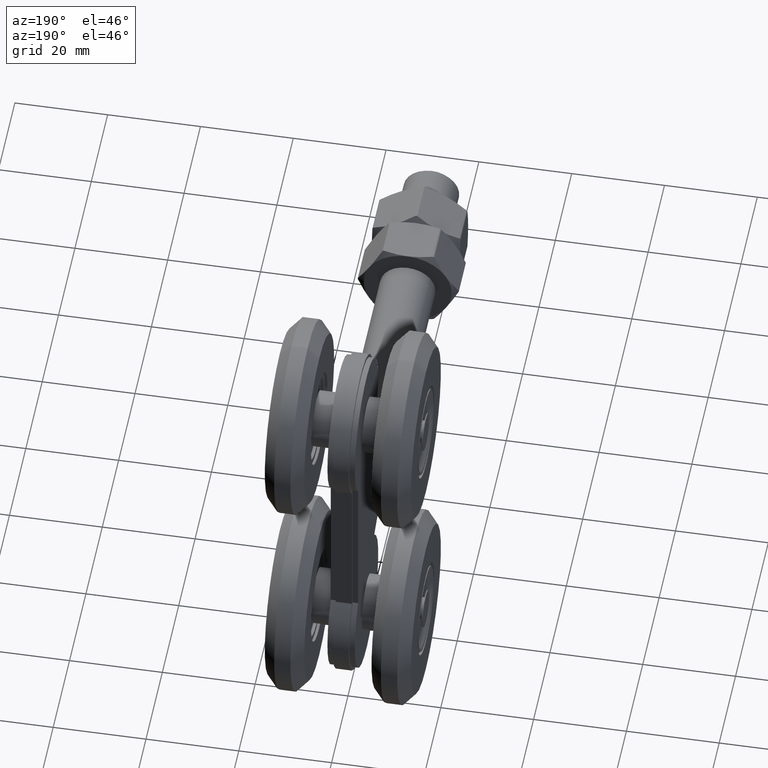
[diagram: clean part render]
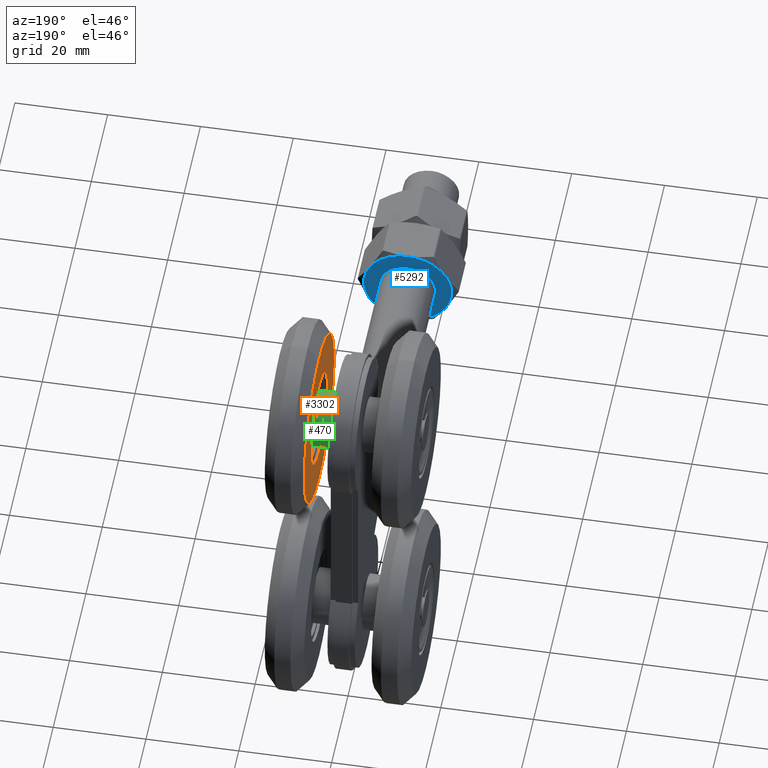
[diagram: same view with three faces highlighted in distinct colors, each labeled with its STEP entity id]
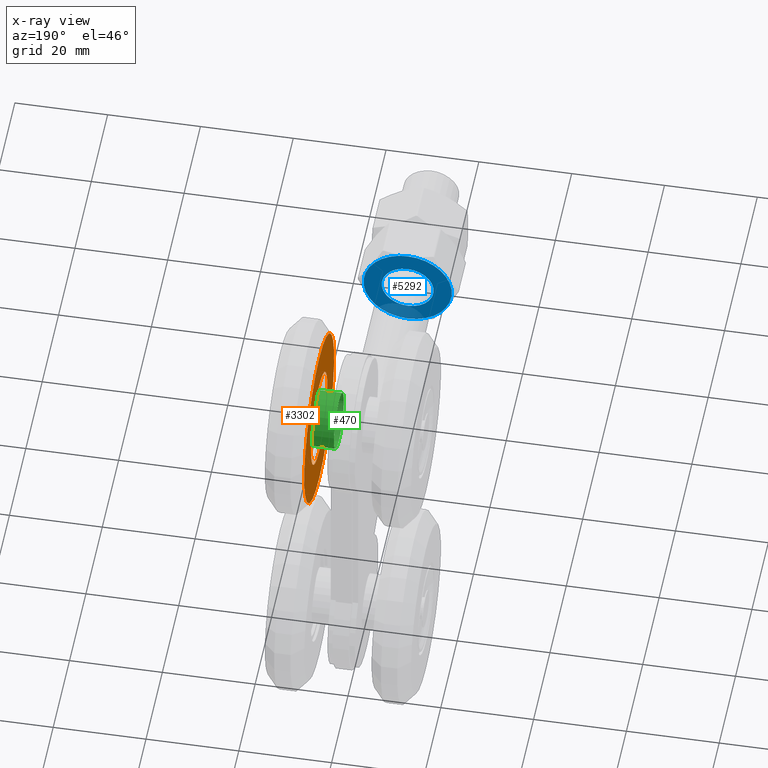
[diagram: x-ray of the same camera — body ghosted, the three highlighted faces saturated]
A machine part, auxiliary view with three faces highlighted in distinct colors.
The next image is the same camera in x-ray (body ghosted, the three faces saturated) — at least one of them is partly hidden behind the body in this view.
Their STEP definitions:

[orange] entity #3302 — the highlighted planar face has unit normal (1, 0, 0).
#1534 = CARTESIAN_POINT ( 'NONE',  ( 7.249999999999993783, 44.00000000000001421, 27.00000000000000000 ) ) ;
#2581 = DIRECTION ( 'NONE',  ( 0.000000000000000000, 0.000000000000000000, 1.000000000000000000 ) ) ;
#2918 = VERTEX_POINT ( 'NONE', #18616 ) ;
#2975 = EDGE_CURVE ( 'NONE', #5075, #5075, #5900, .T. ) ;
#3302 = ADVANCED_FACE ( 'NONE', ( #5883, #4249 ), #4473, .F. ) ;
#4249 = FACE_OUTER_BOUND ( 'NONE', #18711, .T. ) ;
#4257 = ORIENTED_EDGE ( 'NONE', *, *, #2975, .F. ) ;
#4473 = PLANE ( 'NONE',  #8888 ) ;
#5075 = VERTEX_POINT ( 'NONE', #9156 ) ;
#5883 = FACE_BOUND ( 'NONE', #8075, .T. ) ;
#5900 = CIRCLE ( 'NONE', #14739, 10.00000000000000533 ) ;
#7021 = DIRECTION ( 'NONE',  ( -1.000000000000000000, -0.000000000000000000, -0.000000000000000000 ) ) ;
#8075 = EDGE_LOOP ( 'NONE', ( #4257 ) ) ;
#8432 = CARTESIAN_POINT ( 'NONE',  ( 7.249999999999994671, 34.00000000000000000, 27.00000000000000000 ) ) ;
#8763 = DIRECTION ( 'NONE',  ( -1.000000000000000000, -0.000000000000000000, -0.000000000000000000 ) ) ;
#8888 = AXIS2_PLACEMENT_3D ( 'NONE', #1534, #16822, #13844 ) ;
#9156 = CARTESIAN_POINT ( 'NONE',  ( 7.249999999999994671, 34.00000000000000000, 37.00000000000000711 ) ) ;
#10312 = DIRECTION ( 'NONE',  ( 0.000000000000000000, 0.000000000000000000, 1.000000000000000000 ) ) ;
#10632 = CIRCLE ( 'NONE', #12988, 18.25000000000001421 ) ;
#12988 = AXIS2_PLACEMENT_3D ( 'NONE', #14860, #8763, #10312 ) ;
#13844 = DIRECTION ( 'NONE',  ( 0.000000000000000000, 0.000000000000000000, -1.000000000000000000 ) ) ;
#14545 = ORIENTED_EDGE ( 'NONE', *, *, #15165, .T. ) ;
#14739 = AXIS2_PLACEMENT_3D ( 'NONE', #8432, #7021, #2581 ) ;
#14860 = CARTESIAN_POINT ( 'NONE',  ( 7.249999999999992895, 34.00000000000000000, 27.00000000000000000 ) ) ;
#15165 = EDGE_CURVE ( 'NONE', #2918, #2918, #10632, .T. ) ;
#16822 = DIRECTION ( 'NONE',  ( 1.000000000000000000, 0.000000000000000000, 0.000000000000000000 ) ) ;
#18616 = CARTESIAN_POINT ( 'NONE',  ( 7.249999999999992895, 34.00000000000000000, 45.25000000000001421 ) ) ;
#18711 = EDGE_LOOP ( 'NONE', ( #14545 ) ) ;

[blue] entity #5292 — the highlighted planar face has unit normal (0, 1, 0).
#190 = CIRCLE ( 'NONE', #2412, 5.600000000000000533 ) ;
#1187 = ORIENTED_EDGE ( 'NONE', *, *, #11985, .F. ) ;
#1337 = VERTEX_POINT ( 'NONE', #4373 ) ;
#1446 = CARTESIAN_POINT ( 'NONE',  ( 0.000000000000000000, 5.000000000000000000, 0.000000000000000000 ) ) ;
#1474 = DIRECTION ( 'NONE',  ( -0.000000000000000000, -1.000000000000000000, -0.000000000000000000 ) ) ;
#1568 = DIRECTION ( 'NONE',  ( -0.000000000000000000, -1.000000000000000000, -0.000000000000000000 ) ) ;
#1585 = ORIENTED_EDGE ( 'NONE', *, *, #3416, .T. ) ;
#1709 = DIRECTION ( 'NONE',  ( -0.000000000000000000, -1.000000000000000000, -0.000000000000000000 ) ) ;
#1726 = CIRCLE ( 'NONE', #4759, 9.499999999999998224 ) ;
#1795 = ORIENTED_EDGE ( 'NONE', *, *, #17046, .F. ) ;
#2300 = EDGE_CURVE ( 'NONE', #1337, #2424, #10449, .T. ) ;
#2412 = AXIS2_PLACEMENT_3D ( 'NONE', #12962, #5462, #10170 ) ;
#2424 = VERTEX_POINT ( 'NONE', #13035 ) ;
#2634 = VERTEX_POINT ( 'NONE', #14919 ) ;
#2712 = CARTESIAN_POINT ( 'NONE',  ( 0.000000000000000000, 5.000000000000000000, 0.000000000000000000 ) ) ;
#2881 = AXIS2_PLACEMENT_3D ( 'NONE', #17307, #14125, #12564 ) ;
#3241 = FACE_OUTER_BOUND ( 'NONE', #16947, .T. ) ;
#3416 = EDGE_CURVE ( 'NONE', #4377, #4377, #190, .T. ) ;
#4037 = DIRECTION ( 'NONE',  ( 0.000000000000000000, -0.000000000000000000, 1.000000000000000000 ) ) ;
#4187 = CIRCLE ( 'NONE', #15435, 9.499999999999998224 ) ;
#4303 = DIRECTION ( 'NONE',  ( -0.000000000000000000, -1.000000000000000000, -0.000000000000000000 ) ) ;
#4373 = CARTESIAN_POINT ( 'NONE',  ( 8.227241335952166779, 5.000000000000000000, 4.749999999999996447 ) ) ;
#4377 = VERTEX_POINT ( 'NONE', #7586 ) ;
#4687 = VERTEX_POINT ( 'NONE', #11808 ) ;
#4759 = AXIS2_PLACEMENT_3D ( 'NONE', #19674, #16576, #6135 ) ;
#4796 = ORIENTED_EDGE ( 'NONE', *, *, #12464, .F. ) ;
#4802 = CARTESIAN_POINT ( 'NONE',  ( -1.502314598737158637E-15, 5.000000000000000000, -9.499999999999998224 ) ) ;
#5292 = ADVANCED_FACE ( 'NONE', ( #16544, #3241 ), #17663, .T. ) ;
#5462 = DIRECTION ( 'NONE',  ( -0.000000000000000000, -1.000000000000000000, -0.000000000000000000 ) ) ;
#6135 = DIRECTION ( 'NONE',  ( 0.000000000000000000, 0.000000000000000000, 1.000000000000000000 ) ) ;
#6284 = DIRECTION ( 'NONE',  ( 1.776356839400250465E-15, 0.000000000000000000, 1.000000000000000000 ) ) ;
#6948 = CARTESIAN_POINT ( 'NONE',  ( 0.000000000000000000, 5.000000000000000000, 0.000000000000000000 ) ) ;
#7339 = EDGE_CURVE ( 'NONE', #2634, #11659, #1726, .T. ) ;
#7526 = CARTESIAN_POINT ( 'NONE',  ( -8.227241335952165002, 5.000000000000000000, -4.749999999999999112 ) ) ;
#7586 = CARTESIAN_POINT ( 'NONE',  ( 0.000000000000000000, 5.000000000000000000, 5.600000000000000533 ) ) ;
#8533 = DIRECTION ( 'NONE',  ( 0.000000000000000000, 1.000000000000000000, 0.000000000000000000 ) ) ;
#8961 = DIRECTION ( 'NONE',  ( 8.881784197001252323E-16, 0.000000000000000000, 1.000000000000000000 ) ) ;
#9154 = EDGE_CURVE ( 'NONE', #11659, #10735, #12181, .T. ) ;
#9745 = EDGE_LOOP ( 'NONE', ( #1585 ) ) ;
#10170 = DIRECTION ( 'NONE',  ( 0.000000000000000000, 0.000000000000000000, 1.000000000000000000 ) ) ;
#10343 = DIRECTION ( 'NONE',  ( 0.000000000000000000, 0.000000000000000000, -1.000000000000000000 ) ) ;
#10449 = CIRCLE ( 'NONE', #2881, 9.499999999999998224 ) ;
#10735 = VERTEX_POINT ( 'NONE', #4802 ) ;
#10798 = CIRCLE ( 'NONE', #10899, 9.499999999999998224 ) ;
#10899 = AXIS2_PLACEMENT_3D ( 'NONE', #1446, #1568, #18068 ) ;
#11121 = ORIENTED_EDGE ( 'NONE', *, *, #2300, .F. ) ;
#11659 = VERTEX_POINT ( 'NONE', #7526 ) ;
#11808 = CARTESIAN_POINT ( 'NONE',  ( 8.227241335952165002, 5.000000000000000000, -4.750000000000001776 ) ) ;
#11985 = EDGE_CURVE ( 'NONE', #2424, #2634, #10798, .T. ) ;
#12181 = CIRCLE ( 'NONE', #13191, 9.499999999999998224 ) ;
#12464 = EDGE_CURVE ( 'NONE', #10735, #4687, #16187, .T. ) ;
#12564 = DIRECTION ( 'NONE',  ( -8.881784197001252323E-16, 0.000000000000000000, 1.000000000000000000 ) ) ;
#12650 = ORIENTED_EDGE ( 'NONE', *, *, #9154, .F. ) ;
#12962 = CARTESIAN_POINT ( 'NONE',  ( 0.000000000000000000, 5.000000000000000000, 0.000000000000000000 ) ) ;
#13035 = CARTESIAN_POINT ( 'NONE',  ( 0.000000000000000000, 5.000000000000000000, 9.499999999999998224 ) ) ;
#13191 = AXIS2_PLACEMENT_3D ( 'NONE', #15398, #1709, #6284 ) ;
#14125 = DIRECTION ( 'NONE',  ( -0.000000000000000000, -1.000000000000000000, -0.000000000000000000 ) ) ;
#14295 = ORIENTED_EDGE ( 'NONE', *, *, #7339, .F. ) ;
#14919 = CARTESIAN_POINT ( 'NONE',  ( -8.227241335952165002, 5.000000000000000000, 4.750000000000000000 ) ) ;
#15398 = CARTESIAN_POINT ( 'NONE',  ( 0.000000000000000000, 5.000000000000000000, 0.000000000000000000 ) ) ;
#15435 = AXIS2_PLACEMENT_3D ( 'NONE', #16695, #1474, #8961 ) ;
#16073 = AXIS2_PLACEMENT_3D ( 'NONE', #6948, #8533, #4037 ) ;
#16187 = CIRCLE ( 'NONE', #17556, 9.499999999999998224 ) ;
#16544 = FACE_BOUND ( 'NONE', #9745, .T. ) ;
#16576 = DIRECTION ( 'NONE',  ( -0.000000000000000000, -1.000000000000000000, -0.000000000000000000 ) ) ;
#16695 = CARTESIAN_POINT ( 'NONE',  ( 0.000000000000000000, 5.000000000000000000, 0.000000000000000000 ) ) ;
#16947 = EDGE_LOOP ( 'NONE', ( #1187, #11121, #1795, #4796, #12650, #14295 ) ) ;
#17046 = EDGE_CURVE ( 'NONE', #4687, #1337, #4187, .T. ) ;
#17307 = CARTESIAN_POINT ( 'NONE',  ( 0.000000000000000000, 5.000000000000000000, 0.000000000000000000 ) ) ;
#17556 = AXIS2_PLACEMENT_3D ( 'NONE', #2712, #4303, #10343 ) ;
#17663 = PLANE ( 'NONE',  #16073 ) ;
#18068 = DIRECTION ( 'NONE',  ( 0.000000000000000000, 0.000000000000000000, 1.000000000000000000 ) ) ;
#19674 = CARTESIAN_POINT ( 'NONE',  ( 0.000000000000000000, 5.000000000000000000, 0.000000000000000000 ) ) ;

[green] entity #470 — the highlighted cylindrical surface (bore or boss wall) has radius 6 mm, axis along (-1, -0, -0).
#143 = FACE_OUTER_BOUND ( 'NONE', #19463, .T. ) ;
#470 = ADVANCED_FACE ( 'NONE', ( #143, #6079 ), #10839, .T. ) ;
#691 = AXIS2_PLACEMENT_3D ( 'NONE', #6770, #17417, #728 ) ;
#728 = DIRECTION ( 'NONE',  ( 0.000000000000000000, 0.000000000000000000, -1.000000000000000000 ) ) ;
#834 = EDGE_CURVE ( 'NONE', #7703, #7703, #15463, .T. ) ;
#1332 = EDGE_LOOP ( 'NONE', ( #13115 ) ) ;
#3694 = DIRECTION ( 'NONE',  ( 0.000000000000000000, 0.000000000000000000, 1.000000000000000000 ) ) ;
#3738 = CARTESIAN_POINT ( 'NONE',  ( 3.000000000000000000, 34.00000000000000000, 27.00000000000000711 ) ) ;
#3772 = AXIS2_PLACEMENT_3D ( 'NONE', #5127, #15833, #3694 ) ;
#4768 = ORIENTED_EDGE ( 'NONE', *, *, #18889, .F. ) ;
#5127 = CARTESIAN_POINT ( 'NONE',  ( 7.799999999999999822, 34.00000000000000000, 27.00000000000000711 ) ) ;
#6079 = FACE_OUTER_BOUND ( 'NONE', #1332, .T. ) ;
#6770 = CARTESIAN_POINT ( 'NONE',  ( 7.799999999999999822, 34.00000000000000000, 27.00000000000000711 ) ) ;
#6778 = DIRECTION ( 'NONE',  ( 1.000000000000000000, 0.000000000000000000, 0.000000000000000000 ) ) ;
#7048 = AXIS2_PLACEMENT_3D ( 'NONE', #3738, #6778, #14359 ) ;
#7660 = CARTESIAN_POINT ( 'NONE',  ( 3.000000000000000000, 34.00000000000000000, 21.00000000000000355 ) ) ;
#7703 = VERTEX_POINT ( 'NONE', #7660 ) ;
#10530 = VERTEX_POINT ( 'NONE', #15624 ) ;
#10839 = CYLINDRICAL_SURFACE ( 'NONE', #3772, 6.000000000000001776 ) ;
#13115 = ORIENTED_EDGE ( 'NONE', *, *, #834, .T. ) ;
#14359 = DIRECTION ( 'NONE',  ( 0.000000000000000000, 0.000000000000000000, -1.000000000000000000 ) ) ;
#15463 = CIRCLE ( 'NONE', #7048, 6.000000000000001776 ) ;
#15624 = CARTESIAN_POINT ( 'NONE',  ( 7.799999999999999822, 34.00000000000000000, 21.00000000000000355 ) ) ;
#15833 = DIRECTION ( 'NONE',  ( -1.000000000000000000, -0.000000000000000000, -0.000000000000000000 ) ) ;
#17203 = CIRCLE ( 'NONE', #691, 6.000000000000001776 ) ;
#17417 = DIRECTION ( 'NONE',  ( 1.000000000000000000, 0.000000000000000000, 0.000000000000000000 ) ) ;
#18889 = EDGE_CURVE ( 'NONE', #10530, #10530, #17203, .T. ) ;
#19463 = EDGE_LOOP ( 'NONE', ( #4768 ) ) ;